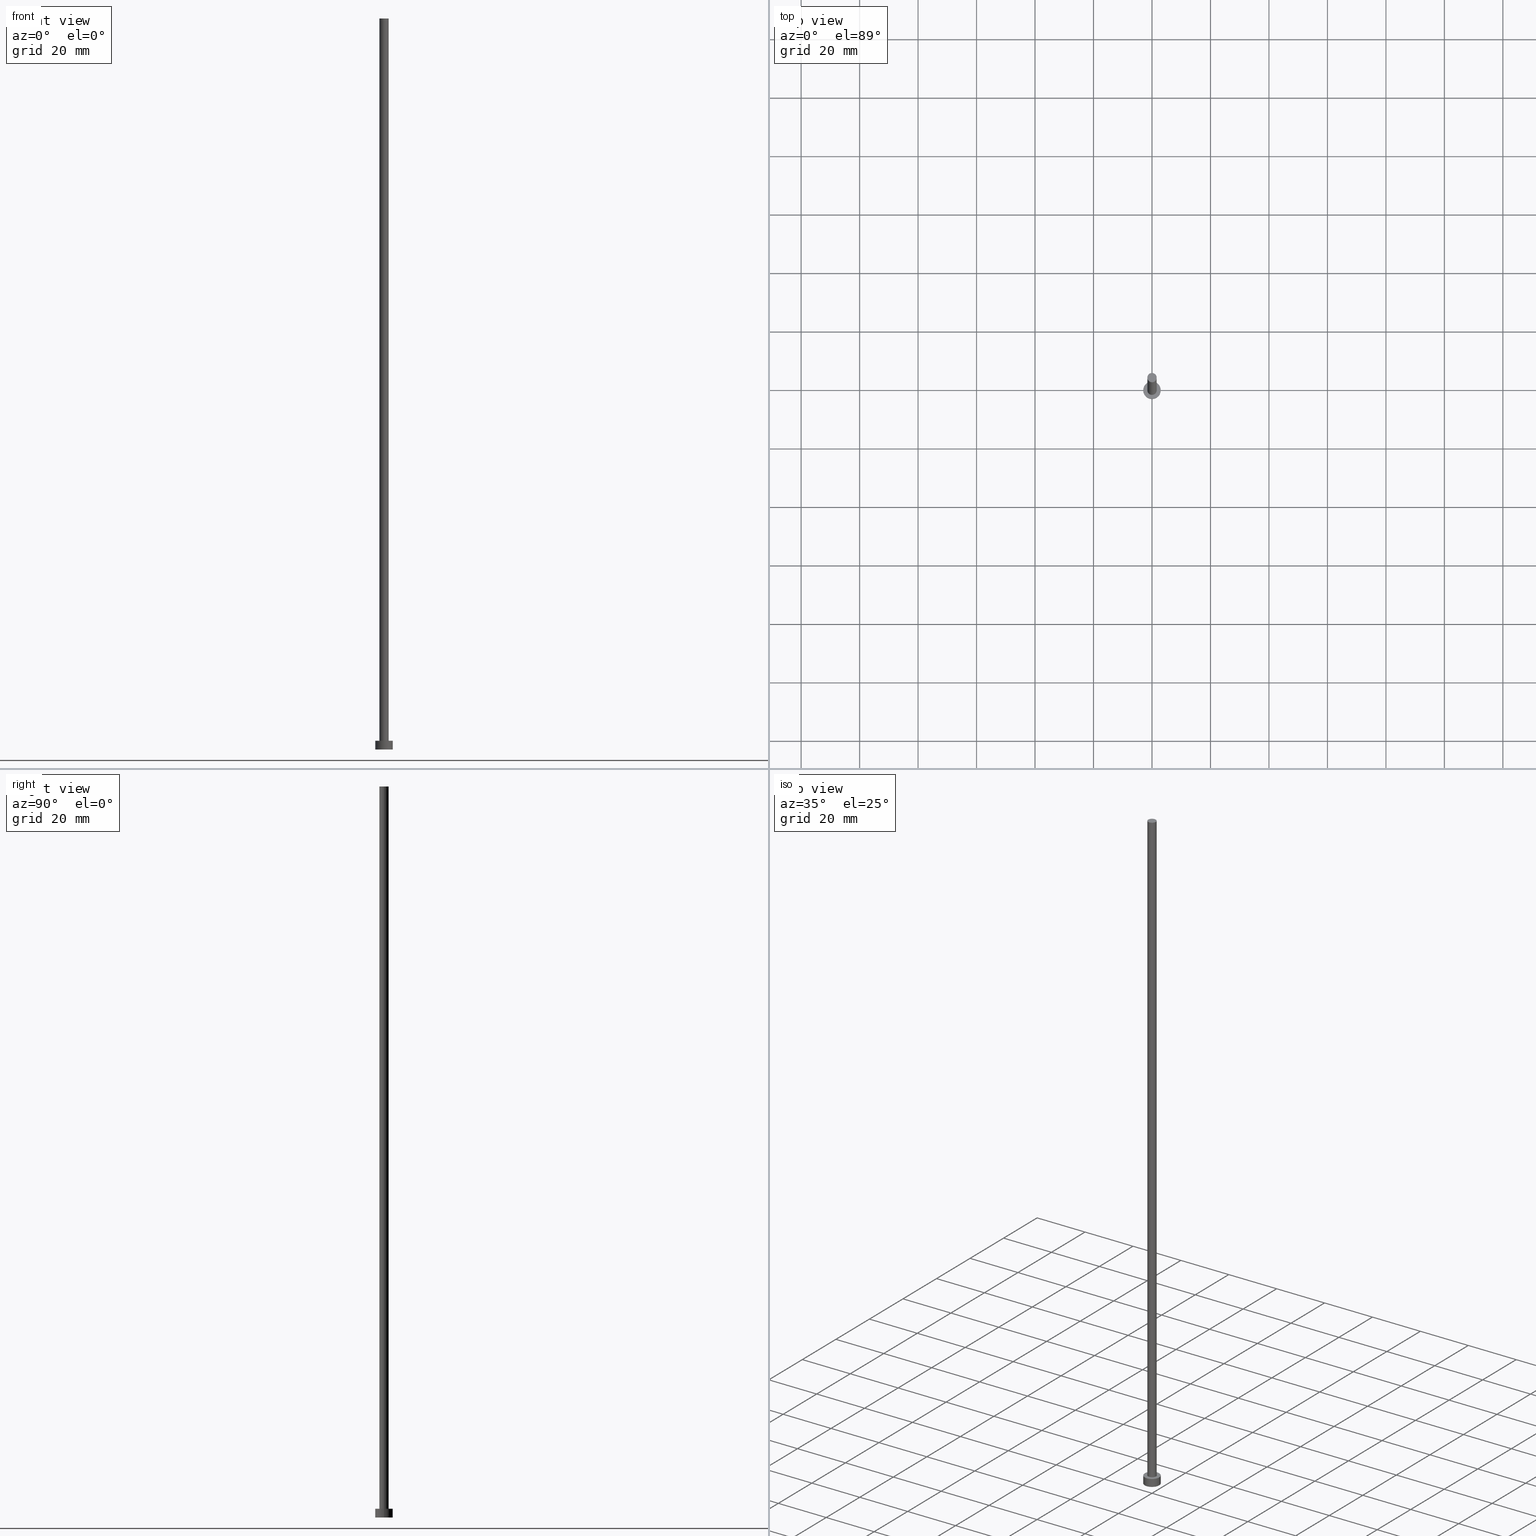
[diagram: canonical four-view strip — front | top / right | iso, engineering-drawing reading convention]
A machine part, canonical four-view strip (front | top / right | iso — engineering-drawing reading convention). The complete STEP part file that produces these views, byte-faithful:
ISO-10303-21;
HEADER;
FILE_DESCRIPTION (( 'STEP AP203' ),
    '1' );
FILE_NAME ('7707.STEP',
    '2023-02-13T16:52:45',
    ( '' ),
    ( '' ),
    'SwSTEP 2.0',
    'SolidWorks 2019',
    '' );
FILE_SCHEMA (( 'CONFIG_CONTROL_DESIGN' ));
ENDSEC;

DATA;
#1 = ORIENTED_EDGE ( 'NONE', *, *, #186, .T. ) ;
#2 = VECTOR ( 'NONE', #221, 1000.000000000000000 ) ;
#3 = CARTESIAN_POINT ( 'NONE',  ( -1.600000000000000089, 0.000000000000000000, 250.0000000000000000 ) ) ;
#4 = FACE_OUTER_BOUND ( 'NONE', #177, .T. ) ;
#5 = DIRECTION ( 'NONE',  ( 0.000000000000000000, 0.000000000000000000, 1.000000000000000000 ) ) ;
#6 = ADVANCED_FACE ( 'NONE', ( #45 ), #107, .F. ) ;
#7 = CARTESIAN_POINT ( 'NONE',  ( 0.000000000000000000, 0.000000000000000000, 0.000000000000000000 ) ) ;
#8 = DIRECTION ( 'NONE',  ( 1.000000000000000000, 0.000000000000000000, 0.000000000000000000 ) ) ;
#9 = CIRCLE ( 'NONE', #46, 1.600000000000000089 ) ;
#10 = LOCAL_TIME ( 17, 52, 45.00000000000000000, #233 ) ;
#11 = PERSON_AND_ORGANIZATION ( #241, #163 ) ;
#12 = DATE_AND_TIME ( #100, #243 ) ;
#13 = AXIS2_PLACEMENT_3D ( 'NONE', #174, #21, #84 ) ;
#14 = CC_DESIGN_PERSON_AND_ORGANIZATION_ASSIGNMENT ( #133, #193, ( #22 ) ) ;
#15 = DATE_TIME_ROLE ( 'classification_date' ) ;
#16 = CIRCLE ( 'NONE', #54, 3.000000000000000444 ) ;
#17 = AXIS2_PLACEMENT_3D ( 'NONE', #91, #244, #164 ) ;
#18 = EDGE_CURVE ( 'NONE', #157, #124, #79, .T. ) ;
#19 = VERTEX_POINT ( 'NONE', #253 ) ;
#20 = CARTESIAN_POINT ( 'NONE',  ( 0.000000000000000000, 0.000000000000000000, 250.0000000000000000 ) ) ;
#21 = DIRECTION ( 'NONE',  ( -0.000000000000000000, -0.000000000000000000, -1.000000000000000000 ) ) ;
#22 = PRODUCT_DEFINITION_FORMATION_WITH_SPECIFIED_SOURCE ( 'LIBOVOLN�', '', #197, .NOT_KNOWN. ) ;
#23 = CARTESIAN_POINT ( 'NONE',  ( 0.000000000000000000, 0.000000000000000000, 3.000000000000000000 ) ) ;
#24 = CYLINDRICAL_SURFACE ( 'NONE', #108, 1.600000000000000089 ) ;
#25 = DIRECTION ( 'NONE',  ( 1.000000000000000000, 0.000000000000000000, 0.000000000000000000 ) ) ;
#26 = VECTOR ( 'NONE', #111, 1000.000000000000000 ) ;
#27 = CC_DESIGN_APPROVAL ( #89, ( #201 ) ) ;
#28 = ADVANCED_FACE ( 'NONE', ( #215 ), #125, .T. ) ;
#29 = DIRECTION ( 'NONE',  ( 1.000000000000000000, 0.000000000000000000, 0.000000000000000000 ) ) ;
#30 = DIRECTION ( 'NONE',  ( 1.000000000000000000, 0.000000000000000000, 0.000000000000000000 ) ) ;
#31 = LINE ( 'NONE', #115, #26 ) ;
#32 = DESIGN_CONTEXT ( 'detailed design', #76, 'design' ) ;
#33 = PERSON_AND_ORGANIZATION ( #241, #163 ) ;
#34 = CALENDAR_DATE ( 2023, 13, 2 ) ;
#35 = EDGE_CURVE ( 'NONE', #140, #124, #105, .T. ) ;
#36 = DATE_TIME_ROLE ( 'creation_date' ) ;
#37 = APPROVAL_DATE_TIME ( #247, #89 ) ;
#38 = ORIENTED_EDGE ( 'NONE', *, *, #35, .F. ) ;
#39 = EDGE_CURVE ( 'NONE', #195, #40, #16, .T. ) ;
#40 = VERTEX_POINT ( 'NONE', #161 ) ;
#41 = VECTOR ( 'NONE', #205, 1000.000000000000000 ) ;
#42 = ORIENTED_EDGE ( 'NONE', *, *, #39, .T. ) ;
#43 = CC_DESIGN_DATE_AND_TIME_ASSIGNMENT ( #12, #36, ( #231 ) ) ;
#44 = DIRECTION ( 'NONE',  ( 1.000000000000000000, 0.000000000000000000, 0.000000000000000000 ) ) ;
#45 = FACE_OUTER_BOUND ( 'NONE', #87, .T. ) ;
#46 = AXIS2_PLACEMENT_3D ( 'NONE', #94, #204, #25 ) ;
#47 = CARTESIAN_POINT ( 'NONE',  ( 0.000000000000000000, 0.000000000000000000, 3.000000000000000000 ) ) ;
#48 = DIRECTION ( 'NONE',  ( 1.000000000000000000, 0.000000000000000000, 0.000000000000000000 ) ) ;
#49 = AXIS2_PLACEMENT_3D ( 'NONE', #158, #65, #184 ) ;
#50 = DIRECTION ( 'NONE',  ( 0.000000000000000000, 0.000000000000000000, 1.000000000000000000 ) ) ;
#51 = PLANE ( 'NONE',  #17 ) ;
#52 = CARTESIAN_POINT ( 'NONE',  ( 3.000000000000000444, 3.673940397442060361E-16, 3.000000000000000000 ) ) ;
#53 = ADVANCED_FACE ( 'NONE', ( #180 ), #67, .T. ) ;
#54 = AXIS2_PLACEMENT_3D ( 'NONE', #179, #64, #44 ) ;
#55 = FACE_OUTER_BOUND ( 'NONE', #202, .T. ) ;
#56 = APPROVAL_PERSON_ORGANIZATION ( #75, #255, #210 ) ;
#57 = APPROVAL_STATUS ( 'not_yet_approved' ) ;
#58 = PERSON_AND_ORGANIZATION_ROLE ( 'design_owner' ) ;
#59 = ADVANCED_FACE ( 'NONE', ( #216 ), #24, .T. ) ;
#60 = PERSON_AND_ORGANIZATION ( #241, #163 ) ;
#61 = SHAPE_DEFINITION_REPRESENTATION ( #148, #226 ) ;
#62 = EDGE_CURVE ( 'NONE', #19, #121, #214, .T. ) ;
#63 = EDGE_LOOP ( 'NONE', ( #199, #66, #106, #1 ) ) ;
#64 = DIRECTION ( 'NONE',  ( 0.000000000000000000, 0.000000000000000000, 1.000000000000000000 ) ) ;
#65 = DIRECTION ( 'NONE',  ( 0.000000000000000000, 0.000000000000000000, 1.000000000000000000 ) ) ;
#66 = ORIENTED_EDGE ( 'NONE', *, *, #71, .F. ) ;
#67 = CYLINDRICAL_SURFACE ( 'NONE', #74, 3.000000000000000444 ) ;
#68 = AXIS2_PLACEMENT_3D ( 'NONE', #95, #135, #168 ) ;
#69 = CIRCLE ( 'NONE', #208, 3.000000000000000444 ) ;
#70 = CARTESIAN_POINT ( 'NONE',  ( 1.600000000000000089, 1.959434878635765230E-16, 250.0000000000000000 ) ) ;
#71 = EDGE_CURVE ( 'NONE', #121, #19, #190, .T. ) ;
#72 = APPLICATION_PROTOCOL_DEFINITION ( 'international standard', 'config_control_design', 1994, #122 ) ;
#73 = CARTESIAN_POINT ( 'NONE',  ( -1.600000000000000089, 0.000000000000000000, 250.0000000000000000 ) ) ;
#74 = AXIS2_PLACEMENT_3D ( 'NONE', #47, #128, #238 ) ;
#75 = PERSON_AND_ORGANIZATION ( #241, #163 ) ;
#76 = APPLICATION_CONTEXT ( 'configuration controlled 3d designs of mechanical parts and assemblies' ) ;
#77 = MANIFOLD_SOLID_BREP ( 'P�idat vysunut�m3', #185 ) ;
#78 = COORDINATED_UNIVERSAL_TIME_OFFSET ( 1, 0, .AHEAD. ) ;
#79 = CIRCLE ( 'NONE', #113, 1.600000000000000089 ) ;
#80 = CALENDAR_DATE ( 2023, 13, 2 ) ;
#81 = AXIS2_PLACEMENT_3D ( 'NONE', #166, #109, #30 ) ;
#82 = APPROVAL_PERSON_ORGANIZATION ( #60, #86, #120 ) ;
#83 = ORIENTED_EDGE ( 'NONE', *, *, #39, .F. ) ;
#84 = DIRECTION ( 'NONE',  ( -1.000000000000000000, 0.000000000000000000, 0.000000000000000000 ) ) ;
#85 = DIRECTION ( 'NONE',  ( -1.000000000000000000, 0.000000000000000000, 0.000000000000000000 ) ) ;
#86 = APPROVAL ( #136, 'NEUR�EN�' ) ;
#87 = EDGE_LOOP ( 'NONE', ( #173, #83 ) ) ;
#88 = EDGE_LOOP ( 'NONE', ( #138, #235 ) ) ;
#89 = APPROVAL ( #171, 'NEUR�EN�' ) ;
#90 =( LENGTH_UNIT ( ) NAMED_UNIT ( * ) SI_UNIT ( .MILLI., .METRE. ) );
#91 = CARTESIAN_POINT ( 'NONE',  ( 0.000000000000000000, 0.000000000000000000, 250.0000000000000000 ) ) ;
#92 =( NAMED_UNIT ( * ) SI_UNIT ( $, .STERADIAN. ) SOLID_ANGLE_UNIT ( ) );
#93 = EDGE_CURVE ( 'NONE', #196, #140, #118, .T. ) ;
#94 = CARTESIAN_POINT ( 'NONE',  ( 0.000000000000000000, 0.000000000000000000, 3.000000000000000000 ) ) ;
#95 = CARTESIAN_POINT ( 'NONE',  ( 0.000000000000000000, 0.000000000000000000, 0.000000000000000000 ) ) ;
#96 = AXIS2_PLACEMENT_3D ( 'NONE', #156, #160, #200 ) ;
#97 = APPROVAL_DATE_TIME ( #249, #86 ) ;
#98 =( GEOMETRIC_REPRESENTATION_CONTEXT ( 3 ) GLOBAL_UNCERTAINTY_ASSIGNED_CONTEXT ( ( #236 ) ) GLOBAL_UNIT_ASSIGNED_CONTEXT ( ( #90, #183, #92 ) ) REPRESENTATION_CONTEXT ( 'NONE', 'WORKASPACE' ) );
#99 = PERSON_AND_ORGANIZATION ( #241, #163 ) ;
#100 = CALENDAR_DATE ( 2023, 13, 2 ) ;
#101 = ADVANCED_FACE ( 'NONE', ( #55 ), #130, .T. ) ;
#102 = APPROVAL_DATE_TIME ( #119, #255 ) ;
#103 = DIRECTION ( 'NONE',  ( 1.000000000000000000, 0.000000000000000000, 0.000000000000000000 ) ) ;
#104 = DIRECTION ( 'NONE',  ( -0.000000000000000000, -0.000000000000000000, -1.000000000000000000 ) ) ;
#105 = LINE ( 'NONE', #237, #2 ) ;
#106 = ORIENTED_EDGE ( 'NONE', *, *, #191, .T. ) ;
#107 = PLANE ( 'NONE',  #96 ) ;
#108 = AXIS2_PLACEMENT_3D ( 'NONE', #20, #104, #85 ) ;
#109 = DIRECTION ( 'NONE',  ( 0.000000000000000000, 0.000000000000000000, 1.000000000000000000 ) ) ;
#110 = VECTOR ( 'NONE', #129, 1000.000000000000000 ) ;
#111 = DIRECTION ( 'NONE',  ( -0.000000000000000000, -0.000000000000000000, -1.000000000000000000 ) ) ;
#112 = CC_DESIGN_PERSON_AND_ORGANIZATION_ASSIGNMENT ( #99, #58, ( #197 ) ) ;
#113 = AXIS2_PLACEMENT_3D ( 'NONE', #23, #252, #103 ) ;
#114 = LOCAL_TIME ( 17, 52, 45.00000000000000000, #78 ) ;
#115 = CARTESIAN_POINT ( 'NONE',  ( -3.000000000000000444, 0.000000000000000000, 3.000000000000000000 ) ) ;
#116 = EDGE_CURVE ( 'NONE', #19, #195, #162, .T. ) ;
#117 = PERSON_AND_ORGANIZATION ( #241, #163 ) ;
#118 = CIRCLE ( 'NONE', #145, 1.600000000000000089 ) ;
#119 = DATE_AND_TIME ( #34, #10 ) ;
#120 = APPROVAL_ROLE ( '' ) ;
#121 = VERTEX_POINT ( 'NONE', #131 ) ;
#122 = APPLICATION_CONTEXT ( 'configuration controlled 3d designs of mechanical parts and assemblies' ) ;
#123 = EDGE_LOOP ( 'NONE', ( #38, #175, #250, #127 ) ) ;
#124 = VERTEX_POINT ( 'NONE', #206 ) ;
#125 = CYLINDRICAL_SURFACE ( 'NONE', #13, 1.600000000000000089 ) ;
#126 = ORIENTED_EDGE ( 'NONE', *, *, #35, .T. ) ;
#127 = ORIENTED_EDGE ( 'NONE', *, *, #18, .T. ) ;
#128 = DIRECTION ( 'NONE',  ( -0.000000000000000000, -0.000000000000000000, -1.000000000000000000 ) ) ;
#129 = DIRECTION ( 'NONE',  ( -0.000000000000000000, -0.000000000000000000, -1.000000000000000000 ) ) ;
#130 = CYLINDRICAL_SURFACE ( 'NONE', #220, 3.000000000000000444 ) ;
#131 = CARTESIAN_POINT ( 'NONE',  ( -3.000000000000000444, 0.000000000000000000, 3.000000000000000000 ) ) ;
#132 = PLANE ( 'NONE',  #251 ) ;
#133 = PERSON_AND_ORGANIZATION ( #241, #163 ) ;
#134 = COORDINATED_UNIVERSAL_TIME_OFFSET ( 1, 0, .AHEAD. ) ;
#135 = DIRECTION ( 'NONE',  ( 0.000000000000000000, 0.000000000000000000, 1.000000000000000000 ) ) ;
#136 = APPROVAL_STATUS ( 'not_yet_approved' ) ;
#137 = PERSON_AND_ORGANIZATION_ROLE ( 'classification_officer' ) ;
#138 = ORIENTED_EDGE ( 'NONE', *, *, #71, .T. ) ;
#139 = CC_DESIGN_PERSON_AND_ORGANIZATION_ASSIGNMENT ( #33, #137, ( #201 ) ) ;
#140 = VERTEX_POINT ( 'NONE', #70 ) ;
#141 = ORIENTED_EDGE ( 'NONE', *, *, #165, .F. ) ;
#142 = EDGE_LOOP ( 'NONE', ( #194, #126, #218, #254 ) ) ;
#143 = ORIENTED_EDGE ( 'NONE', *, *, #116, .T. ) ;
#144 = FACE_BOUND ( 'NONE', #239, .T. ) ;
#145 = AXIS2_PLACEMENT_3D ( 'NONE', #242, #222, #8 ) ;
#146 = LOCAL_TIME ( 17, 52, 45.00000000000000000, #232 ) ;
#147 = DIRECTION ( 'NONE',  ( 0.000000000000000000, 0.000000000000000000, 1.000000000000000000 ) ) ;
#148 = PRODUCT_DEFINITION_SHAPE ( 'NONE', 'NONE',  #231 ) ;
#149 = CARTESIAN_POINT ( 'NONE',  ( -1.600000000000000089, 0.000000000000000000, 3.000000000000000000 ) ) ;
#150 = EDGE_CURVE ( 'NONE', #196, #157, #228, .T. ) ;
#151 = PERSON_AND_ORGANIZATION_ROLE ( 'creator' ) ;
#152 = PERSON_AND_ORGANIZATION_ROLE ( 'creator' ) ;
#153 = DATE_AND_TIME ( #80, #146 ) ;
#154 = CC_DESIGN_APPROVAL ( #255, ( #231 ) ) ;
#155 = ORIENTED_EDGE ( 'NONE', *, *, #93, .T. ) ;
#156 = CARTESIAN_POINT ( 'NONE',  ( 0.000000000000000000, 0.000000000000000000, 0.000000000000000000 ) ) ;
#157 = VERTEX_POINT ( 'NONE', #149 ) ;
#158 = CARTESIAN_POINT ( 'NONE',  ( 0.000000000000000000, 0.000000000000000000, 3.000000000000000000 ) ) ;
#159 = ADVANCED_FACE ( 'NONE', ( #144, #182 ), #132, .T. ) ;
#160 = DIRECTION ( 'NONE',  ( 0.000000000000000000, 0.000000000000000000, 1.000000000000000000 ) ) ;
#161 = CARTESIAN_POINT ( 'NONE',  ( -3.000000000000000444, 0.000000000000000000, 0.000000000000000000 ) ) ;
#162 = LINE ( 'NONE', #52, #41 ) ;
#163 = ORGANIZATION ( 'NEUR�EN�', 'NEUR�EN�', '' ) ;
#164 = DIRECTION ( 'NONE',  ( 1.000000000000000000, 0.000000000000000000, -0.000000000000000000 ) ) ;
#165 = EDGE_CURVE ( 'NONE', #124, #157, #9, .T. ) ;
#166 = CARTESIAN_POINT ( 'NONE',  ( 0.000000000000000000, 0.000000000000000000, 250.0000000000000000 ) ) ;
#167 = CARTESIAN_POINT ( 'NONE',  ( 0.000000000000000000, 0.000000000000000000, 3.000000000000000000 ) ) ;
#168 = DIRECTION ( 'NONE',  ( 1.000000000000000000, 0.000000000000000000, 0.000000000000000000 ) ) ;
#169 = CALENDAR_DATE ( 2023, 13, 2 ) ;
#170 = CC_DESIGN_APPROVAL ( #86, ( #22 ) ) ;
#171 = APPROVAL_STATUS ( 'not_yet_approved' ) ;
#172 = APPLICATION_PROTOCOL_DEFINITION ( 'international standard', 'config_control_design', 1994, #76 ) ;
#173 = ORIENTED_EDGE ( 'NONE', *, *, #186, .F. ) ;
#174 = CARTESIAN_POINT ( 'NONE',  ( 0.000000000000000000, 0.000000000000000000, 250.0000000000000000 ) ) ;
#175 = ORIENTED_EDGE ( 'NONE', *, *, #93, .F. ) ;
#176 = PRODUCT_RELATED_PRODUCT_CATEGORY ( 'detail', '', ( #197 ) ) ;
#177 = EDGE_LOOP ( 'NONE', ( #155, #213 ) ) ;
#178 = CC_DESIGN_SECURITY_CLASSIFICATION ( #201, ( #22 ) ) ;
#179 = CARTESIAN_POINT ( 'NONE',  ( 0.000000000000000000, 0.000000000000000000, 0.000000000000000000 ) ) ;
#180 = FACE_OUTER_BOUND ( 'NONE', #63, .T. ) ;
#181 = CC_DESIGN_PERSON_AND_ORGANIZATION_ASSIGNMENT ( #11, #151, ( #231 ) ) ;
#182 = FACE_OUTER_BOUND ( 'NONE', #88, .T. ) ;
#183 =( NAMED_UNIT ( * ) PLANE_ANGLE_UNIT ( ) SI_UNIT ( $, .RADIAN. ) );
#184 = DIRECTION ( 'NONE',  ( 1.000000000000000000, 0.000000000000000000, 0.000000000000000000 ) ) ;
#185 = CLOSED_SHELL ( 'NONE', ( #28, #101, #53, #159, #6, #59, #248 ) ) ;
#186 = EDGE_CURVE ( 'NONE', #40, #195, #69, .T. ) ;
#187 = DIRECTION ( 'NONE',  ( -0.000000000000000000, -0.000000000000000000, -1.000000000000000000 ) ) ;
#188 = CIRCLE ( 'NONE', #81, 1.600000000000000089 ) ;
#189 = APPROVAL_ROLE ( '' ) ;
#190 = CIRCLE ( 'NONE', #224, 3.000000000000000444 ) ;
#191 = EDGE_CURVE ( 'NONE', #121, #40, #31, .T. ) ;
#192 = LOCAL_TIME ( 17, 52, 45.00000000000000000, #134 ) ;
#193 = PERSON_AND_ORGANIZATION_ROLE ( 'design_supplier' ) ;
#194 = ORIENTED_EDGE ( 'NONE', *, *, #217, .F. ) ;
#195 = VERTEX_POINT ( 'NONE', #203 ) ;
#196 = VERTEX_POINT ( 'NONE', #3 ) ;
#197 = PRODUCT ( '7707', '7707', '', ( #246 ) ) ;
#198 = ORIENTED_EDGE ( 'NONE', *, *, #62, .F. ) ;
#199 = ORIENTED_EDGE ( 'NONE', *, *, #116, .F. ) ;
#200 = DIRECTION ( 'NONE',  ( 1.000000000000000000, 0.000000000000000000, -0.000000000000000000 ) ) ;
#201 = SECURITY_CLASSIFICATION ( '', '', #212 ) ;
#202 = EDGE_LOOP ( 'NONE', ( #198, #143, #42, #219 ) ) ;
#203 = CARTESIAN_POINT ( 'NONE',  ( 3.000000000000000444, 3.673940397442060361E-16, 0.000000000000000000 ) ) ;
#204 = DIRECTION ( 'NONE',  ( 0.000000000000000000, 0.000000000000000000, 1.000000000000000000 ) ) ;
#205 = DIRECTION ( 'NONE',  ( -0.000000000000000000, -0.000000000000000000, -1.000000000000000000 ) ) ;
#206 = CARTESIAN_POINT ( 'NONE',  ( 1.600000000000000089, 1.959434878635765230E-16, 3.000000000000000000 ) ) ;
#207 = DIRECTION ( 'NONE',  ( 1.000000000000000000, 0.000000000000000000, -0.000000000000000000 ) ) ;
#208 = AXIS2_PLACEMENT_3D ( 'NONE', #7, #5, #48 ) ;
#209 = PERSON_AND_ORGANIZATION ( #241, #163 ) ;
#210 = APPROVAL_ROLE ( '' ) ;
#211 = CC_DESIGN_PERSON_AND_ORGANIZATION_ASSIGNMENT ( #209, #152, ( #22 ) ) ;
#212 = SECURITY_CLASSIFICATION_LEVEL ( 'unclassified' ) ;
#213 = ORIENTED_EDGE ( 'NONE', *, *, #217, .T. ) ;
#214 = CIRCLE ( 'NONE', #49, 3.000000000000000444 ) ;
#215 = FACE_OUTER_BOUND ( 'NONE', #142, .T. ) ;
#216 = FACE_OUTER_BOUND ( 'NONE', #123, .T. ) ;
#217 = EDGE_CURVE ( 'NONE', #140, #196, #188, .T. ) ;
#218 = ORIENTED_EDGE ( 'NONE', *, *, #165, .T. ) ;
#219 = ORIENTED_EDGE ( 'NONE', *, *, #191, .F. ) ;
#220 = AXIS2_PLACEMENT_3D ( 'NONE', #227, #187, #223 ) ;
#221 = DIRECTION ( 'NONE',  ( -0.000000000000000000, -0.000000000000000000, -1.000000000000000000 ) ) ;
#222 = DIRECTION ( 'NONE',  ( 0.000000000000000000, 0.000000000000000000, 1.000000000000000000 ) ) ;
#223 = DIRECTION ( 'NONE',  ( -1.000000000000000000, 0.000000000000000000, 0.000000000000000000 ) ) ;
#224 = AXIS2_PLACEMENT_3D ( 'NONE', #245, #147, #29 ) ;
#225 = CC_DESIGN_DATE_AND_TIME_ASSIGNMENT ( #153, #15, ( #201 ) ) ;
#226 = ADVANCED_BREP_SHAPE_REPRESENTATION ( '7707', ( #77, #68 ), #98 ) ;
#227 = CARTESIAN_POINT ( 'NONE',  ( 0.000000000000000000, 0.000000000000000000, 3.000000000000000000 ) ) ;
#228 = LINE ( 'NONE', #73, #110 ) ;
#229 = COORDINATED_UNIVERSAL_TIME_OFFSET ( 1, 0, .AHEAD. ) ;
#230 = APPROVAL_PERSON_ORGANIZATION ( #117, #89, #189 ) ;
#231 = PRODUCT_DEFINITION ( 'NEZN�M�', '', #22, #32 ) ;
#232 = COORDINATED_UNIVERSAL_TIME_OFFSET ( 1, 0, .AHEAD. ) ;
#233 = COORDINATED_UNIVERSAL_TIME_OFFSET ( 1, 0, .AHEAD. ) ;
#234 = CALENDAR_DATE ( 2023, 13, 2 ) ;
#235 = ORIENTED_EDGE ( 'NONE', *, *, #62, .T. ) ;
#236 = UNCERTAINTY_MEASURE_WITH_UNIT (LENGTH_MEASURE( 1.000000000000000082E-05 ), #90, 'distance_accuracy_value', 'NONE');
#237 = CARTESIAN_POINT ( 'NONE',  ( 1.600000000000000089, 1.959434878635765230E-16, 250.0000000000000000 ) ) ;
#238 = DIRECTION ( 'NONE',  ( -1.000000000000000000, 0.000000000000000000, 0.000000000000000000 ) ) ;
#239 = EDGE_LOOP ( 'NONE', ( #240, #141 ) ) ;
#240 = ORIENTED_EDGE ( 'NONE', *, *, #18, .F. ) ;
#241 = PERSON ( 'NEUR�EN�', 'NEUR�EN�', 'NEUR�EN�', ('NEUR�EN�'), ('NEUR�EN�'), ('NEUR�EN�') ) ;
#242 = CARTESIAN_POINT ( 'NONE',  ( 0.000000000000000000, 0.000000000000000000, 250.0000000000000000 ) ) ;
#243 = LOCAL_TIME ( 17, 52, 45.00000000000000000, #229 ) ;
#244 = DIRECTION ( 'NONE',  ( 0.000000000000000000, 0.000000000000000000, 1.000000000000000000 ) ) ;
#245 = CARTESIAN_POINT ( 'NONE',  ( 0.000000000000000000, 0.000000000000000000, 3.000000000000000000 ) ) ;
#246 = MECHANICAL_CONTEXT ( 'NONE', #122, 'mechanical' ) ;
#247 = DATE_AND_TIME ( #169, #192 ) ;
#248 = ADVANCED_FACE ( 'NONE', ( #4 ), #51, .T. ) ;
#249 = DATE_AND_TIME ( #234, #114 ) ;
#250 = ORIENTED_EDGE ( 'NONE', *, *, #150, .T. ) ;
#251 = AXIS2_PLACEMENT_3D ( 'NONE', #167, #50, #207 ) ;
#252 = DIRECTION ( 'NONE',  ( 0.000000000000000000, 0.000000000000000000, 1.000000000000000000 ) ) ;
#253 = CARTESIAN_POINT ( 'NONE',  ( 3.000000000000000444, 3.673940397442060361E-16, 3.000000000000000000 ) ) ;
#254 = ORIENTED_EDGE ( 'NONE', *, *, #150, .F. ) ;
#255 = APPROVAL ( #57, 'NEUR�EN�' ) ;
ENDSEC;
END-ISO-10303-21;
